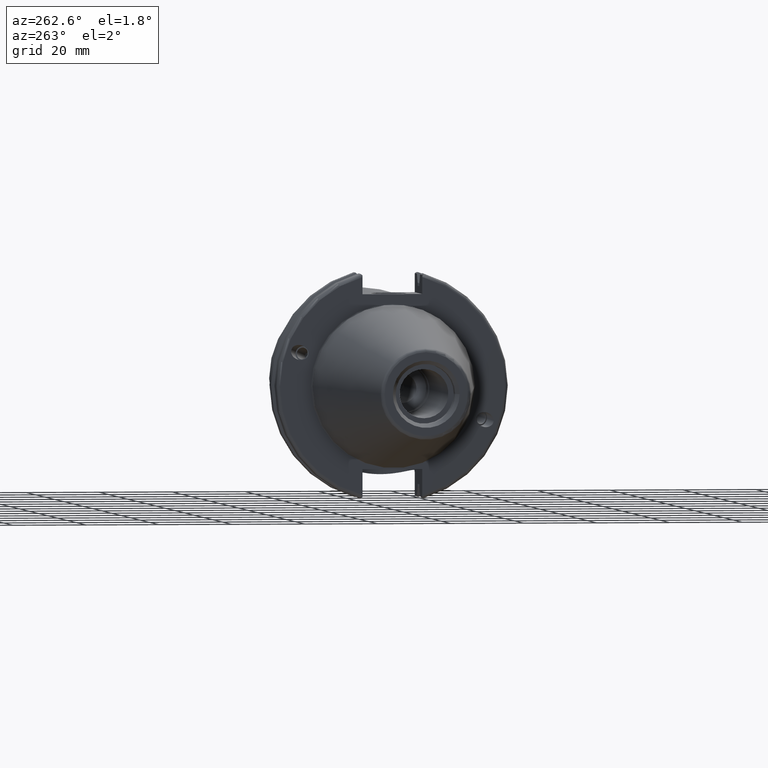
[diagram: clean part render]
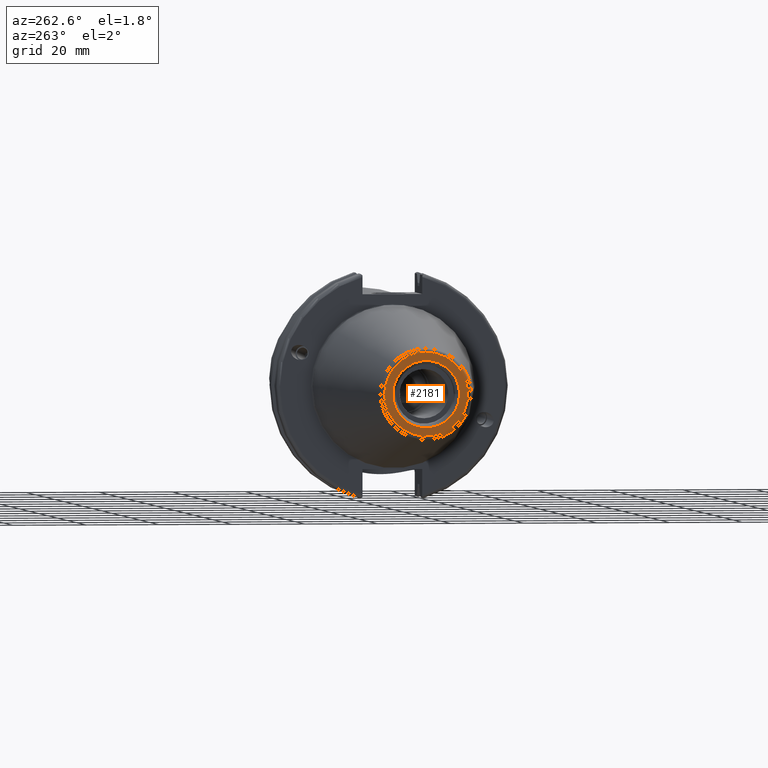
[diagram: same view with one face highlighted and labeled with its STEP entity id]
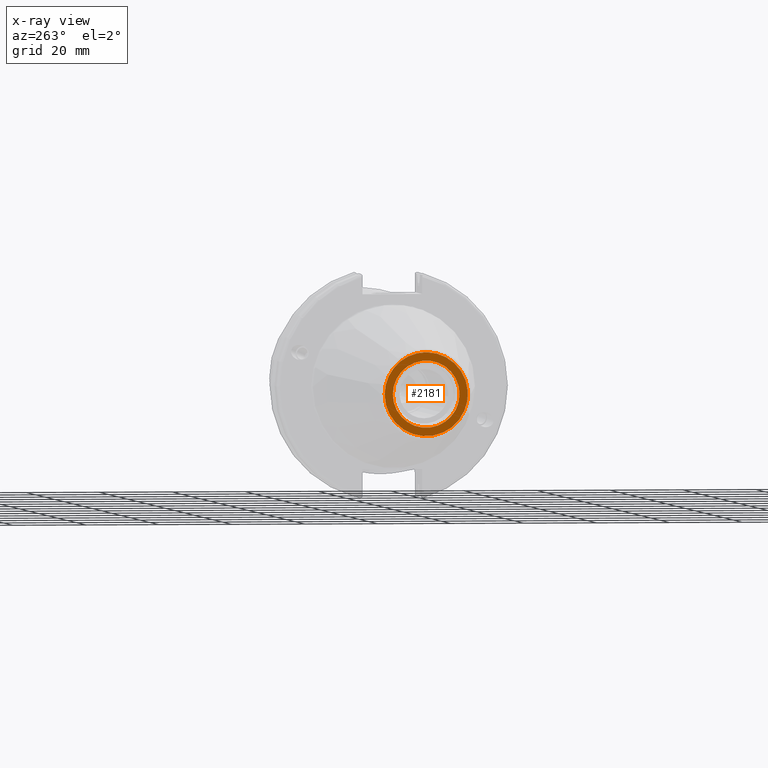
[diagram: x-ray of the same camera — body ghosted, the highlighted face saturated]
A machine part, auxiliary view. The second image highlights one B-rep face of the part: STEP entity #2181.
The next image is the same camera in x-ray: the body ghosted, the highlighted face saturated — about 0% of this face is hidden behind the body in this view.
In plain terms, the highlighted planar face has unit normal (-1, 0, 0).
Its self-contained STEP definition (entity closure, byte-faithful):
#70=PLANE('',#2490);
#114=FACE_BOUND('',#373,.T.);
#252=FACE_OUTER_BOUND('',#372,.T.);
#372=EDGE_LOOP('',(#1926,#1927));
#373=EDGE_LOOP('',(#1928,#1929));
#753=CIRCLE('',#2487,11.4071305970304);
#754=CIRCLE('',#2488,11.4071305970304);
#756=CIRCLE('',#2491,9.15);
#757=CIRCLE('',#2492,9.15);
#1004=VERTEX_POINT('',#4213);
#1005=VERTEX_POINT('',#4215);
#1006=VERTEX_POINT('',#4220);
#1007=VERTEX_POINT('',#4221);
#1331=EDGE_CURVE('',#1004,#1005,#753,.T.);
#1332=EDGE_CURVE('',#1005,#1004,#754,.T.);
#1334=EDGE_CURVE('',#1006,#1007,#756,.T.);
#1335=EDGE_CURVE('',#1007,#1006,#757,.T.);
#1926=ORIENTED_EDGE('',*,*,#1332,.F.);
#1927=ORIENTED_EDGE('',*,*,#1331,.F.);
#1928=ORIENTED_EDGE('',*,*,#1334,.T.);
#1929=ORIENTED_EDGE('',*,*,#1335,.T.);
#2181=ADVANCED_FACE('',(#252,#114),#70,.T.);
#2487=AXIS2_PLACEMENT_3D('',#4216,#3142,#3143);
#2488=AXIS2_PLACEMENT_3D('',#4217,#3144,#3145);
#2490=AXIS2_PLACEMENT_3D('',#4219,#3148,#3149);
#2491=AXIS2_PLACEMENT_3D('',#4222,#3150,#3151);
#2492=AXIS2_PLACEMENT_3D('',#4223,#3152,#3153);
#3142=DIRECTION('center_axis',(1.,0.,0.));
#3143=DIRECTION('ref_axis',(0.,-1.,1.83697019872103E-16));
#3144=DIRECTION('center_axis',(1.,0.,0.));
#3145=DIRECTION('ref_axis',(0.,-1.,1.83697019872103E-16));
#3148=DIRECTION('center_axis',(-1.,0.,0.));
#3149=DIRECTION('ref_axis',(0.,0.,1.));
#3150=DIRECTION('center_axis',(1.,0.,0.));
#3151=DIRECTION('ref_axis',(0.,0.,-1.));
#3152=DIRECTION('center_axis',(1.,0.,0.));
#3153=DIRECTION('ref_axis',(0.,0.,-1.));
#4213=CARTESIAN_POINT('',(-68.25,-1.39697059731091E-15,11.4071305970304));
#4215=CARTESIAN_POINT('',(-68.25,11.4071305970304,-6.98485298655456E-16));
#4216=CARTESIAN_POINT('Origin',(-68.25,0.,0.));
#4217=CARTESIAN_POINT('Origin',(-68.25,0.,0.));
#4219=CARTESIAN_POINT('Origin',(-68.25,12.271875,0.));
#4220=CARTESIAN_POINT('',(-68.25,9.15,0.));
#4221=CARTESIAN_POINT('',(-68.25,-9.15,-1.12055182121983E-15));
#4222=CARTESIAN_POINT('Origin',(-68.25,0.,0.));
#4223=CARTESIAN_POINT('Origin',(-68.25,0.,0.));